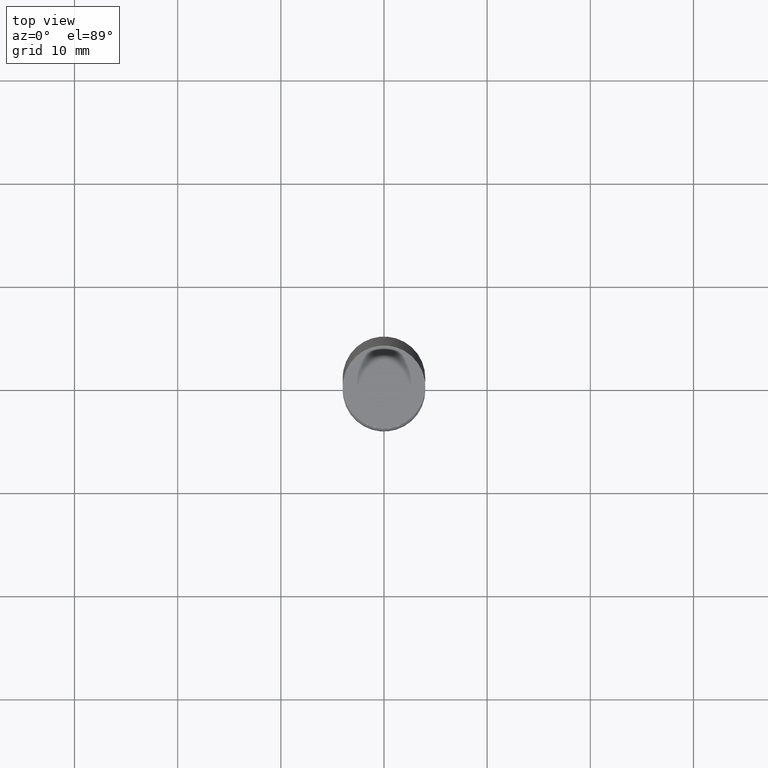
[diagram: clean part render]
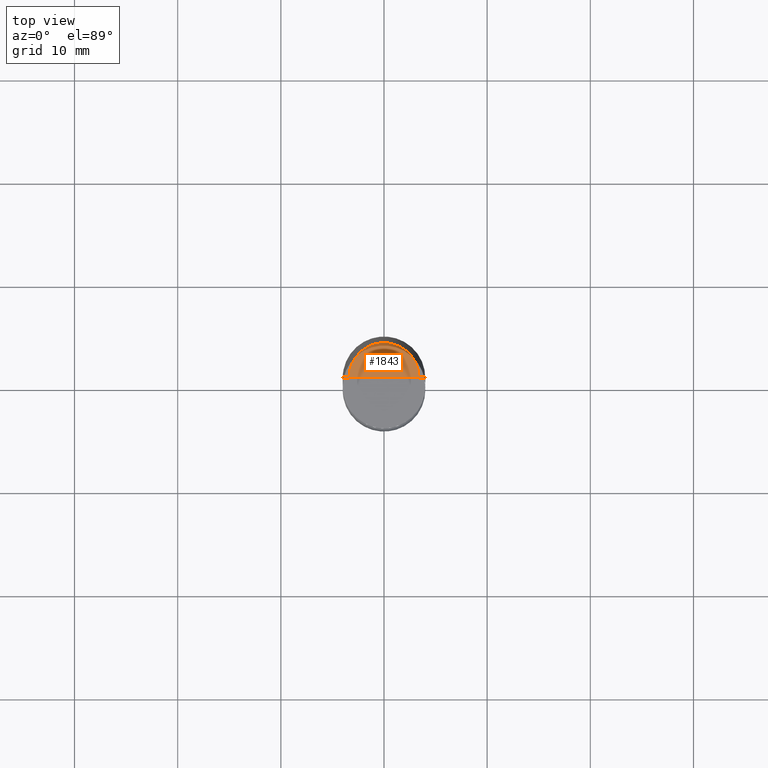
[diagram: same view with one face highlighted and labeled with its STEP entity id]
A machine part, top view. The second image highlights one B-rep face of the part: STEP entity #1843.
In plain terms, the highlighted face is a freeform B-spline surface patch.
Its self-contained STEP definition (entity closure, byte-faithful):
#1603=CARTESIAN_POINT('',(3.4,0.0,50.0));
#1604=CARTESIAN_POINT('',(3.4,3.4,50.0));
#1605=CARTESIAN_POINT('',(0.0,3.4,50.0));
#1606=CARTESIAN_POINT('',(-3.4,3.4,50.0));
#1607=CARTESIAN_POINT('',(-3.4,0.0,50.0));
#1608=CARTESIAN_POINT('',(0.0,0.0,50.0));
#1828=(
BOUNDED_SURFACE()
B_SPLINE_SURFACE(1,2,(
(#1603,#1604,#1605,#1606,#1607),
(#1608,#1608,#1608,#1608,#1608)
), .UNSPECIFIED.,.F.,.F.,.F.)
B_SPLINE_SURFACE_WITH_KNOTS((2,2),(3,2,3),(
0.0,1.0),(
0.0,0.5,1.0), .UNSPECIFIED.)
GEOMETRIC_REPRESENTATION_ITEM()
RATIONAL_B_SPLINE_SURFACE(((1.0,0.707106781187,1.0,0.707106781187,1.0),
(1.0,0.707106781187,1.0,0.707106781187,1.0)
))
REPRESENTATION_ITEM('')
SURFACE()
);
#1829=(
BOUNDED_CURVE()
B_SPLINE_CURVE(1,(#1608,#1603),.UNSPECIFIED.,.F.,.F.)
B_SPLINE_CURVE_WITH_KNOTS((2,2),
(0.0,1.0),.UNSPECIFIED.)
CURVE()
GEOMETRIC_REPRESENTATION_ITEM()
RATIONAL_B_SPLINE_CURVE((1.0,1.0))
REPRESENTATION_ITEM('')
);
#1830=(
BOUNDED_CURVE()
B_SPLINE_CURVE(2,(#1603,#1604,#1605,#1606,#1607),.UNSPECIFIED.,.F.,.F.)
B_SPLINE_CURVE_WITH_KNOTS((3,2,3),
(0.0,0.5,1.0),.UNSPECIFIED.)
CURVE()
GEOMETRIC_REPRESENTATION_ITEM()
RATIONAL_B_SPLINE_CURVE((1.0,0.707106781187,1.0,0.707106781187,1.0))
REPRESENTATION_ITEM('')
);
#1831=(
BOUNDED_CURVE()
B_SPLINE_CURVE(1,(#1607,#1608),.UNSPECIFIED.,.F.,.F.)
B_SPLINE_CURVE_WITH_KNOTS((2,2),
(0.0,1.0),.UNSPECIFIED.)
CURVE()
GEOMETRIC_REPRESENTATION_ITEM()
RATIONAL_B_SPLINE_CURVE((1.0,1.0))
REPRESENTATION_ITEM('')
);
#1832=VERTEX_POINT('',#1603);
#1833=VERTEX_POINT('',#1607);
#1834=VERTEX_POINT('',#1608);
#1835=EDGE_CURVE('',#1834,#1832,#1829,.T.);
#1836=EDGE_CURVE('',#1832,#1833,#1830,.T.);
#1837=EDGE_CURVE('',#1833,#1834,#1831,.T.);
#1838=ORIENTED_EDGE('',*,*,#1835,.T.);
#1839=ORIENTED_EDGE('',*,*,#1836,.T.);
#1840=ORIENTED_EDGE('',*,*,#1837,.T.);
#1841=EDGE_LOOP('',(#1838,#1839,#1840));
#1842=FACE_OUTER_BOUND('',#1841,.T.);
#1843=ADVANCED_FACE('',(#1842),#1828,.T.);